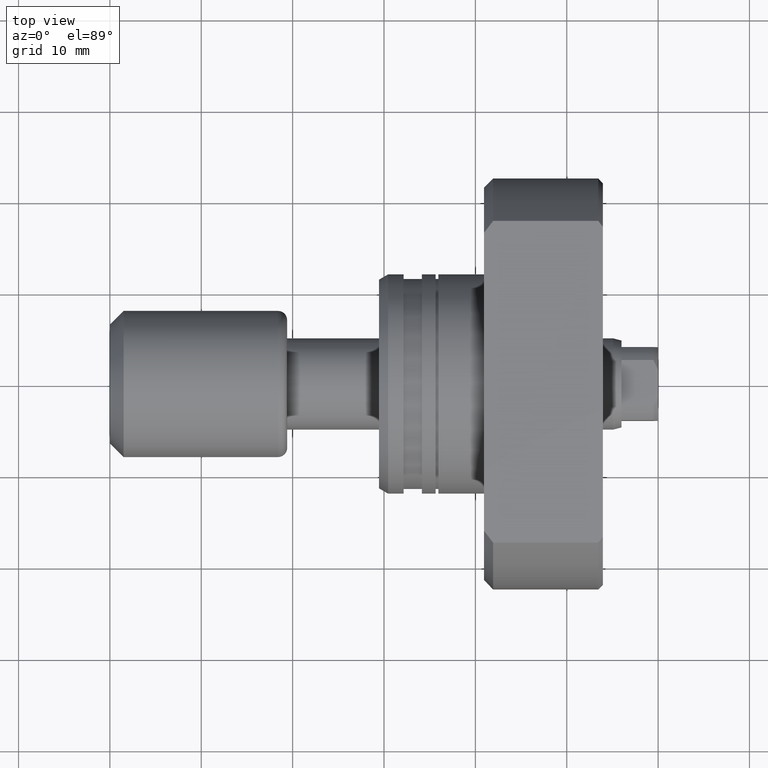
[diagram: clean part render]
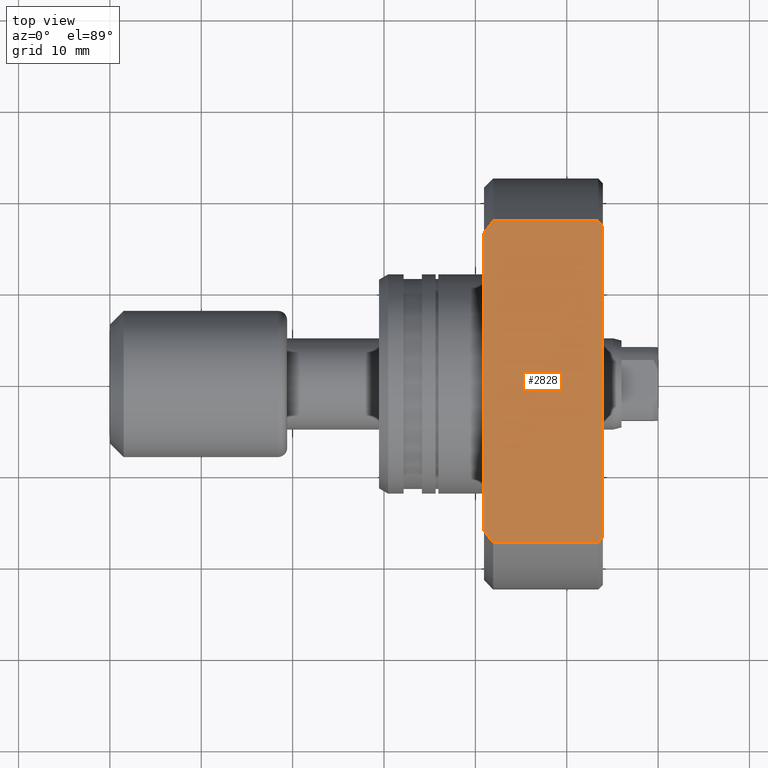
[diagram: same view with one face highlighted and labeled with its STEP entity id]
A machine part, top view. The second image highlights one B-rep face of the part: STEP entity #2828.
In plain terms, the highlighted planar face has unit normal (0, 0, 1).
Its self-contained STEP definition (entity closure, byte-faithful):
#29 = DIRECTION ( 'NONE',  ( 0.000000000000000000, 0.000000000000000000, 1.000000000000000000 ) ) ;
#35 = DIRECTION ( 'NONE',  ( 1.000000000000000000, -2.886466111666351885E-14, -0.000000000000000000 ) ) ;
#49 = DIRECTION ( 'NONE',  ( 1.000000000000000000, 0.000000000000000000, -0.000000000000000000 ) ) ;
#62 = CARTESIAN_POINT ( 'NONE',  ( 24.00000000000007461, -17.61391495380843963, 14.00000000000001066 ) ) ;
#93 = CARTESIAN_POINT ( 'NONE',  ( -1.162264728904460753E-12, -17.61391495380774685, 14.00000000000001066 ) ) ;
#173 = CARTESIAN_POINT ( 'NONE',  ( 12.49999999999977263, -17.61391495380810568, 14.00000000000001066 ) ) ;
#192 = EDGE_CURVE ( 'NONE', #1707, #1589, #2585, .T. ) ;
#295 = EDGE_CURVE ( 'NONE', #1933, #1707, #2236, .T. ) ;
#301 = VERTEX_POINT ( 'NONE', #1903 ) ;
#303 = B_SPLINE_CURVE_WITH_KNOTS ( 'NONE', 3,
 ( #2507, #2000, #1772, #1026 ),
 .UNSPECIFIED., .F., .F.,
 ( 4, 4 ),
 ( 0.06706314534022636553, 0.06787700449519981638 ),
 .UNSPECIFIED. ) ;
#341 = CARTESIAN_POINT ( 'NONE',  ( 11.49999999999978684, -16.31716887208061095, 14.00000000000000355 ) ) ;
#381 = EDGE_LOOP ( 'NONE', ( #1875, #1409, #3113, #704, #2921, #1479, #1363, #3100 ) ) ;
#439 = CARTESIAN_POINT ( 'NONE',  ( 11.49999999999978861, 16.31716887208061095, 14.00000000000000355 ) ) ;
#455 = VERTEX_POINT ( 'NONE', #2738 ) ;
#502 = FACE_OUTER_BOUND ( 'NONE', #381, .T. ) ;
#577 = LINE ( 'NONE', #2125, #2307 ) ;
#616 = VERTEX_POINT ( 'NONE', #1040 ) ;
#654 = CARTESIAN_POINT ( 'NONE',  ( 12.49999999999977263, -17.61391495380810568, 14.00000000000001066 ) ) ;
#704 = ORIENTED_EDGE ( 'NONE', *, *, #192, .T. ) ;
#786 = EDGE_CURVE ( 'NONE', #1467, #2137, #2163, .T. ) ;
#797 = CARTESIAN_POINT ( 'NONE',  ( 24.50000000000000000, -16.97056274847713553, 14.00000000000000355 ) ) ;
#916 = CARTESIAN_POINT ( 'NONE',  ( 12.49999999999977263, 17.61391495380878425, 13.99999999999999645 ) ) ;
#1026 = CARTESIAN_POINT ( 'NONE',  ( 24.00000000000007461, 17.61391495380845029, 13.99999999999999645 ) ) ;
#1040 = CARTESIAN_POINT ( 'NONE',  ( 11.49999999999978861, 16.31716887208061095, 14.00000000000000355 ) ) ;
#1051 = B_SPLINE_CURVE_WITH_KNOTS ( 'NONE', 3,
 ( #1288, #1327, #3020, #797 ),
 .UNSPECIFIED., .F., .F.,
 ( 4, 4 ),
 ( 0.02824287035670665011, 0.02906016577245322530 ),
 .UNSPECIFIED. ) ;
#1138 = EDGE_CURVE ( 'NONE', #616, #1933, #577, .T. ) ;
#1169 = CARTESIAN_POINT ( 'NONE',  ( 11.82989979264795011, 16.75185491336265997, 14.00000000000000355 ) ) ;
#1206 = CARTESIAN_POINT ( 'NONE',  ( 24.50000000000000000, 16.97056274847713553, 14.00000000000000355 ) ) ;
#1232 = AXIS2_PLACEMENT_3D ( 'NONE', #2269, #29, #49 ) ;
#1288 = CARTESIAN_POINT ( 'NONE',  ( 24.00000000000007461, -17.61391495380843963, 14.00000000000001066 ) ) ;
#1316 = PLANE ( 'NONE',  #1232 ) ;
#1327 = CARTESIAN_POINT ( 'NONE',  ( 24.16744706737967618, -17.40001821217426681, 14.00000000000000355 ) ) ;
#1363 = ORIENTED_EDGE ( 'NONE', *, *, #1424, .T. ) ;
#1389 = CARTESIAN_POINT ( 'NONE',  ( 11.83011165526848885, -16.75213407002135213, 14.00000000000000355 ) ) ;
#1409 = ORIENTED_EDGE ( 'NONE', *, *, #1138, .T. ) ;
#1424 = EDGE_CURVE ( 'NONE', #2137, #301, #303, .T. ) ;
#1467 = VERTEX_POINT ( 'NONE', #3001 ) ;
#1479 = ORIENTED_EDGE ( 'NONE', *, *, #786, .T. ) ;
#1589 = VERTEX_POINT ( 'NONE', #62 ) ;
#1707 = VERTEX_POINT ( 'NONE', #173 ) ;
#1709 = EDGE_CURVE ( 'NONE', #455, #616, #2143, .T. ) ;
#1772 = CARTESIAN_POINT ( 'NONE',  ( 24.16739802011472449, 17.40008086510889740, 14.00000000000000355 ) ) ;
#1839 = VECTOR ( 'NONE', #2082, 1000.000000000000000 ) ;
#1875 = ORIENTED_EDGE ( 'NONE', *, *, #1709, .T. ) ;
#1884 = CARTESIAN_POINT ( 'NONE',  ( 12.16342151182557352, 17.18396987891851424, 14.00000000000000355 ) ) ;
#1903 = CARTESIAN_POINT ( 'NONE',  ( 24.00000000000007461, 17.61391495380845029, 13.99999999999999645 ) ) ;
#1923 = CARTESIAN_POINT ( 'NONE',  ( 24.50000000000000000, 17.61391495380915018, 14.00000000000000355 ) ) ;
#1933 = VERTEX_POINT ( 'NONE', #341 ) ;
#1999 = EDGE_CURVE ( 'NONE', #455, #301, #2080, .T. ) ;
#2000 = CARTESIAN_POINT ( 'NONE',  ( 24.33408568434172992, 17.18564783425659925, 14.00000000000000355 ) ) ;
#2040 = VECTOR ( 'NONE', #2398, 1000.000000000000000 ) ;
#2080 = LINE ( 'NONE', #3075, #2565 ) ;
#2082 = DIRECTION ( 'NONE',  ( 1.000000000000000000, -2.886466111666351885E-14, -0.000000000000000000 ) ) ;
#2125 = CARTESIAN_POINT ( 'NONE',  ( 11.49999999999978506, -11.99999999999999467, 14.00000000000000355 ) ) ;
#2134 = CARTESIAN_POINT ( 'NONE',  ( 12.16362554919180994, -17.18423051607681984, 14.00000000000000355 ) ) ;
#2137 = VERTEX_POINT ( 'NONE', #1206 ) ;
#2143 = B_SPLINE_CURVE_WITH_KNOTS ( 'NONE', 3,
 ( #916, #1884, #1169, #439 ),
 .UNSPECIFIED., .F., .F.,
 ( 4, 4 ),
 ( 0.02825164645976066535, 0.02989446144990340337 ),
 .UNSPECIFIED. ) ;
#2163 = LINE ( 'NONE', #1923, #2040 ) ;
#2236 = B_SPLINE_CURVE_WITH_KNOTS ( 'NONE', 3,
 ( #3095, #1389, #2134, #654 ),
 .UNSPECIFIED., .F., .F.,
 ( 4, 4 ),
 ( 0.06624998678667230745, 0.06788534956766804906 ),
 .UNSPECIFIED. ) ;
#2269 = CARTESIAN_POINT ( 'NONE',  ( -1.422473250300981817E-13, 17.61391495380915018, 14.00000000000000355 ) ) ;
#2307 = VECTOR ( 'NONE', #3112, 1000.000000000000000 ) ;
#2398 = DIRECTION ( 'NONE',  ( -0.000000000000000000, 1.000000000000000000, 0.000000000000000000 ) ) ;
#2507 = CARTESIAN_POINT ( 'NONE',  ( 24.50000000000000000, 16.97056274847713553, 14.00000000000000355 ) ) ;
#2565 = VECTOR ( 'NONE', #35, 1000.000000000000000 ) ;
#2585 = LINE ( 'NONE', #93, #1839 ) ;
#2738 = CARTESIAN_POINT ( 'NONE',  ( 12.49999999999977263, 17.61391495380878425, 13.99999999999999645 ) ) ;
#2828 = ADVANCED_FACE ( 'NONE', ( #502 ), #1316, .T. ) ;
#2898 = EDGE_CURVE ( 'NONE', #1589, #1467, #1051, .T. ) ;
#2921 = ORIENTED_EDGE ( 'NONE', *, *, #2898, .T. ) ;
#3001 = CARTESIAN_POINT ( 'NONE',  ( 24.50000000000000000, -16.97056274847713553, 14.00000000000000355 ) ) ;
#3020 = CARTESIAN_POINT ( 'NONE',  ( 24.33413566286970564, -17.18558304397054926, 14.00000000000000355 ) ) ;
#3075 = CARTESIAN_POINT ( 'NONE',  ( -1.422473250300981817E-13, 17.61391495380914307, 13.99999999999999645 ) ) ;
#3095 = CARTESIAN_POINT ( 'NONE',  ( 11.49999999999978684, -16.31716887208061095, 14.00000000000000355 ) ) ;
#3100 = ORIENTED_EDGE ( 'NONE', *, *, #1999, .F. ) ;
#3112 = DIRECTION ( 'NONE',  ( 4.998558363877804092E-19, -1.000000000000000000, 0.000000000000000000 ) ) ;
#3113 = ORIENTED_EDGE ( 'NONE', *, *, #295, .T. ) ;